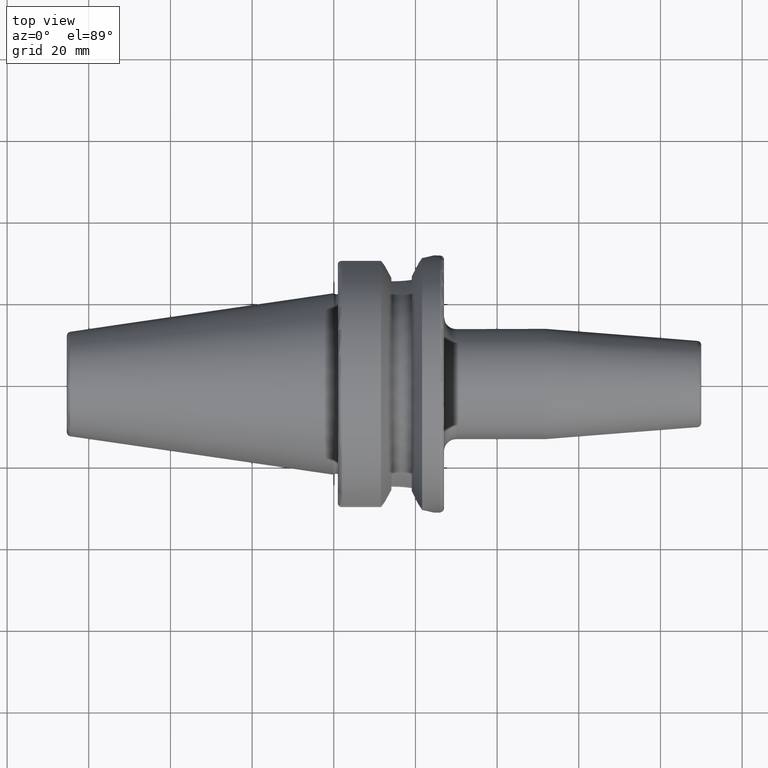
[diagram: clean part render]
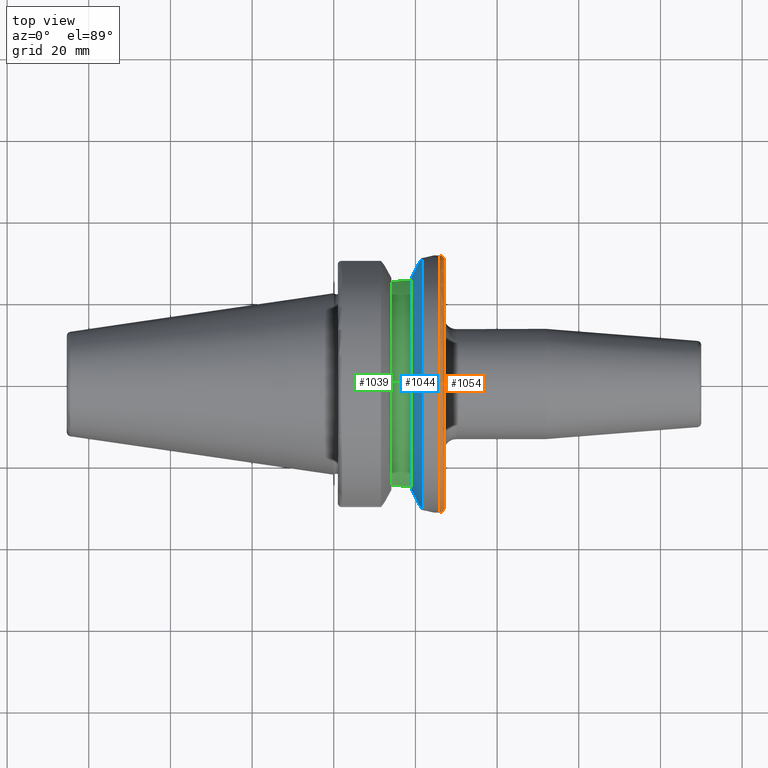
[diagram: same view with three faces highlighted in distinct colors, each labeled with its STEP entity id]
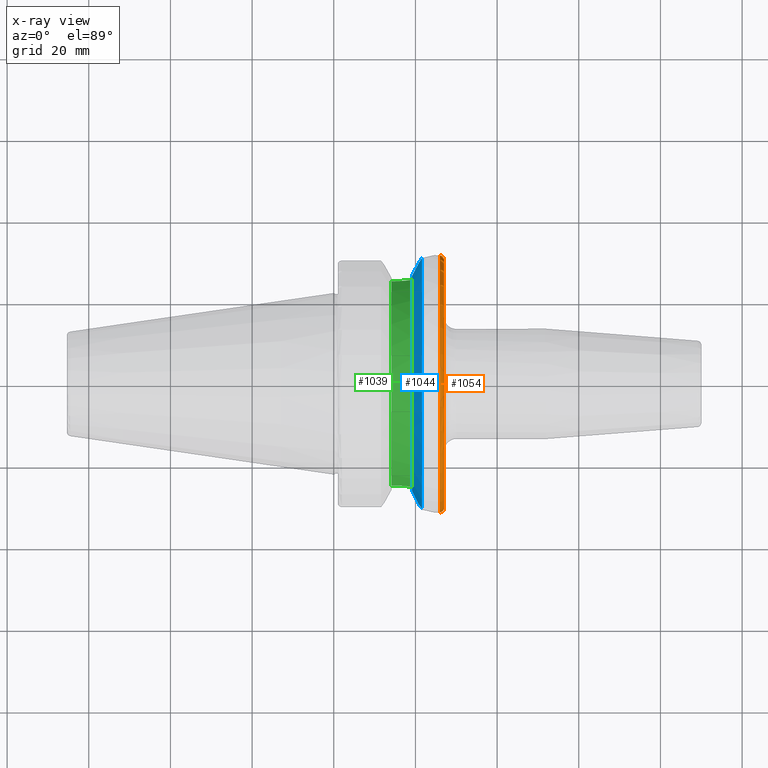
[diagram: x-ray of the same camera — body ghosted, the three highlighted faces saturated]
A machine part, top view with three faces highlighted in distinct colors.
The next image is the same camera in x-ray (body ghosted, the three faces saturated) — at least one of them is partly hidden behind the body in this view.
Their STEP definitions:

[orange] entity #1054 — the highlighted toroidal blend (fillet) surface has major radius 30.5 mm and minor (blend) radius 1 mm.
#278=FACE_OUTER_BOUND('',#344,.T.);
#344=EDGE_LOOP('',(#969,#970,#971,#972,#973));
#364=CIRCLE('',#1104,30.5);
#372=CIRCLE('',#1119,31.5);
#375=CIRCLE('',#1122,31.5);
#412=CIRCLE('',#1199,1.00000000000001);
#427=VERTEX_POINT('',#1554);
#440=VERTEX_POINT('',#1670);
#441=VERTEX_POINT('',#1671);
#535=EDGE_CURVE('',#427,#427,#364,.T.);
#552=EDGE_CURVE('',#440,#441,#372,.T.);
#557=EDGE_CURVE('',#441,#440,#375,.T.);
#668=EDGE_CURVE('',#427,#441,#412,.T.);
#969=ORIENTED_EDGE('',*,*,#535,.F.);
#970=ORIENTED_EDGE('',*,*,#668,.T.);
#971=ORIENTED_EDGE('',*,*,#557,.T.);
#972=ORIENTED_EDGE('',*,*,#552,.T.);
#973=ORIENTED_EDGE('',*,*,#668,.F.);
#997=TOROIDAL_SURFACE('',#1198,30.5,1.00000000000001);
#1054=ADVANCED_FACE('',(#278),#997,.T.);
#1104=AXIS2_PLACEMENT_3D('',#1555,#1256,#1257);
#1119=AXIS2_PLACEMENT_3D('',#1672,#1290,#1291);
#1122=AXIS2_PLACEMENT_3D('',#1687,#1297,#1298);
#1198=AXIS2_PLACEMENT_3D('',#2076,#1496,#1497);
#1199=AXIS2_PLACEMENT_3D('',#2077,#1498,#1499);
#1256=DIRECTION('center_axis',(1.,0.,0.));
#1257=DIRECTION('ref_axis',(0.,0.,-1.));
#1290=DIRECTION('center_axis',(1.,0.,0.));
#1291=DIRECTION('ref_axis',(0.,0.,-1.));
#1297=DIRECTION('center_axis',(1.,0.,0.));
#1298=DIRECTION('ref_axis',(0.,0.,-1.));
#1496=DIRECTION('center_axis',(1.,0.,0.));
#1497=DIRECTION('ref_axis',(0.,0.,-1.));
#1498=DIRECTION('center_axis',(0.,-1.,-1.22464679914735E-16));
#1499=DIRECTION('ref_axis',(0.,-1.22464679914735E-16,1.));
#1554=CARTESIAN_POINT('',(27.,-3.73517273739943E-15,30.5));
#1555=CARTESIAN_POINT('Origin',(27.,0.,0.));
#1670=CARTESIAN_POINT('',(26.,-31.5,-3.85763741731417E-15));
#1671=CARTESIAN_POINT('',(26.,-3.85763741731416E-15,31.5));
#1672=CARTESIAN_POINT('Origin',(26.,0.,0.));
#1687=CARTESIAN_POINT('Origin',(26.,0.,0.));
#2076=CARTESIAN_POINT('Origin',(26.,0.,0.));
#2077=CARTESIAN_POINT('Origin',(26.,-3.73517273739943E-15,30.5));

[blue] entity #1044 — the highlighted conical surface has half-angle 60.125 deg.
#30=B_SPLINE_CURVE_WITH_KNOTS('',3,(#1647,#1648,#1649,#1650,#1651,#1652,
#1653,#1654,#1655,#1656,#1657,#1658,#1659),.UNSPECIFIED.,.F.,.F.,(4,3,3,
3,4),(0.,0.0731680095128381,0.104649820621151,0.171142802077828,0.209508940919985),
 .UNSPECIFIED.);
#40=B_SPLINE_CURVE_WITH_KNOTS('',3,(#1853,#1854,#1855,#1856,#1857,#1858,
#1859,#1860,#1861,#1862,#1863,#1864,#1865),.UNSPECIFIED.,.F.,.F.,(4,3,3,
3,4),(0.,0.0664531587167062,0.104853023510626,0.177983430079729,0.209498394875183),
 .UNSPECIFIED.);
#42=B_SPLINE_CURVE_WITH_KNOTS('',3,(#1939,#1940,#1941,#1942,#1943,#1944),
 .UNSPECIFIED.,.F.,.F.,(4,2,4),(1.4642102789956,1.54570476603971,1.82831600250635),
 .UNSPECIFIED.);
#47=B_SPLINE_CURVE_WITH_KNOTS('',3,(#2032,#2033,#2034,#2035,#2036,#2037),
 .UNSPECIFIED.,.F.,.F.,(4,2,4),(3.3443816511031,3.62699288756974,3.70848737461385),
 .UNSPECIFIED.);
#57=CONICAL_SURFACE('',#1173,29.2970358274569,1.04937921276159);
#268=FACE_OUTER_BOUND('',#333,.T.);
#333=EDGE_LOOP('',(#920,#921,#922,#923,#924,#925));
#374=CIRCLE('',#1121,31.5000000000001);
#397=CIRCLE('',#1174,27.0940716549138);
#438=VERTEX_POINT('',#1639);
#439=VERTEX_POINT('',#1646);
#443=VERTEX_POINT('',#1676);
#469=VERTEX_POINT('',#1852);
#488=VERTEX_POINT('',#1938);
#504=VERTEX_POINT('',#2030);
#550=EDGE_CURVE('',#438,#439,#30,.T.);
#556=EDGE_CURVE('',#443,#438,#374,.T.);
#590=EDGE_CURVE('',#469,#443,#40,.T.);
#616=EDGE_CURVE('',#488,#439,#42,.T.);
#649=EDGE_CURVE('',#469,#504,#47,.T.);
#650=EDGE_CURVE('',#504,#488,#397,.T.);
#920=ORIENTED_EDGE('',*,*,#550,.F.);
#921=ORIENTED_EDGE('',*,*,#556,.F.);
#922=ORIENTED_EDGE('',*,*,#590,.F.);
#923=ORIENTED_EDGE('',*,*,#649,.T.);
#924=ORIENTED_EDGE('',*,*,#650,.T.);
#925=ORIENTED_EDGE('',*,*,#616,.T.);
#1044=ADVANCED_FACE('',(#268),#57,.T.);
#1121=AXIS2_PLACEMENT_3D('',#1686,#1295,#1296);
#1173=AXIS2_PLACEMENT_3D('',#2038,#1443,#1444);
#1174=AXIS2_PLACEMENT_3D('',#2039,#1445,#1446);
#1295=DIRECTION('center_axis',(1.,0.,0.));
#1296=DIRECTION('ref_axis',(0.,0.,-1.));
#1443=DIRECTION('center_axis',(1.,0.,0.));
#1444=DIRECTION('ref_axis',(0.,1.,0.));
#1445=DIRECTION('center_axis',(1.,0.,0.));
#1446=DIRECTION('ref_axis',(0.,0.,-1.));
#1639=CARTESIAN_POINT('',(21.6309636926619,-30.7261128229805,6.93945176433101));
#1646=CARTESIAN_POINT('',(20.7197593187301,-29.382324732277,5.61358863864523));
#1647=CARTESIAN_POINT('Ctrl Pts',(21.6309636926619,-30.7261128229805,6.93945176433103));
#1648=CARTESIAN_POINT('Ctrl Pts',(21.523808608017,-30.5694750524812,6.7862643947483));
#1649=CARTESIAN_POINT('Ctrl Pts',(21.4169091348682,-30.4127664111892,6.63257916592292));
#1650=CARTESIAN_POINT('Ctrl Pts',(21.3104565369096,-30.2562241217975,6.47857776697596));
#1651=CARTESIAN_POINT('Ctrl Pts',(21.26465345161,-30.1888690739029,6.41231598147238));
#1652=CARTESIAN_POINT('Ctrl Pts',(21.218932558532,-30.1215446447261,6.34599600137285));
#1653=CARTESIAN_POINT('Ctrl Pts',(21.1733066768474,-30.0542689338646,6.27963381498106));
#1654=CARTESIAN_POINT('Ctrl Pts',(21.0769398924092,-29.9121753745263,6.13946971787774));
#1655=CARTESIAN_POINT('Ctrl Pts',(20.9807965697266,-29.7700032858713,5.99882548574527));
#1656=CARTESIAN_POINT('Ctrl Pts',(20.8850589555091,-29.627980233877,5.8578732848734));
#1657=CARTESIAN_POINT('Ctrl Pts',(20.8298188005482,-29.5460335981235,5.7765445252015));
#1658=CARTESIAN_POINT('Ctrl Pts',(20.774712916462,-29.4641363179074,5.69511373443497));
#1659=CARTESIAN_POINT('Ctrl Pts',(20.7197698702457,-29.3823300093151,5.61361800937777));
#1676=CARTESIAN_POINT('',(21.6309636926619,30.7261128229805,6.93945176433102));
#1686=CARTESIAN_POINT('Origin',(21.6309636926619,0.,0.));
#1852=CARTESIAN_POINT('',(20.7197593187301,29.382324732277,5.61358863864523));
#1853=CARTESIAN_POINT('Ctrl Pts',(20.7197515894297,29.3823222023351,5.61359762229939));
#1854=CARTESIAN_POINT('Ctrl Pts',(20.8149264355562,29.5240261146166,5.75476612103522));
#1855=CARTESIAN_POINT('Ctrl Pts',(20.9105912690253,29.6660033681397,5.89573769516452));
#1856=CARTESIAN_POINT('Ctrl Pts',(21.0065888437876,29.8080348169787,6.03632495640404));
#1857=CARTESIAN_POINT('Ctrl Pts',(21.0620609080596,29.8901074909828,6.1175631086243));
#1858=CARTESIAN_POINT('Ctrl Pts',(21.1176433000779,29.9721980100116,6.19867342832844));
#1859=CARTESIAN_POINT('Ctrl Pts',(21.1732991947734,30.0542619764308,6.27962385104281));
#1860=CARTESIAN_POINT('Ctrl Pts',(21.2792927504511,30.2105482357996,6.43378942836484));
#1861=CARTESIAN_POINT('Ctrl Pts',(21.3858010607306,30.3670979926265,6.58772453026724));
#1862=CARTESIAN_POINT('Ctrl Pts',(21.4926516371789,30.5236804762099,6.7412363657743));
#1863=CARTESIAN_POINT('Ctrl Pts',(21.5386980399424,30.591158447265,6.8073910655587));
#1864=CARTESIAN_POINT('Ctrl Pts',(21.5848074729305,30.6586423209753,6.87346749569865));
#1865=CARTESIAN_POINT('Ctrl Pts',(21.6309636926619,30.7261128229805,6.93945176433103));
#1938=CARTESIAN_POINT('',(19.1,-26.201311395455,6.89782574439221));
#1939=CARTESIAN_POINT('Ctrl Pts',(19.1,-26.201311395455,6.89782574439221));
#1940=CARTESIAN_POINT('Ctrl Pts',(19.2210929544554,-26.438473693351,6.82497151762395));
#1941=CARTESIAN_POINT('Ctrl Pts',(19.3406963650697,-26.6728819297427,6.74867108656041));
#1942=CARTESIAN_POINT('Ctrl Pts',(19.8677441842159,-27.7064624084632,6.39234949299032));
#1943=CARTESIAN_POINT('Ctrl Pts',(20.3012218741369,-28.558364647748,6.04376984297407));
#1944=CARTESIAN_POINT('Ctrl Pts',(20.7197593187301,-29.382324732277,5.61358863864523));
#2030=CARTESIAN_POINT('',(19.1,26.201311395455,6.89782574439221));
#2032=CARTESIAN_POINT('Ctrl Pts',(20.7197593187301,29.382324732277,5.61358863864523));
#2033=CARTESIAN_POINT('Ctrl Pts',(20.3012218741369,28.558364647748,6.04376984297407));
#2034=CARTESIAN_POINT('Ctrl Pts',(19.867744184216,27.7064624084632,6.39234949299032));
#2035=CARTESIAN_POINT('Ctrl Pts',(19.3406963650697,26.6728819297428,6.74867108656041));
#2036=CARTESIAN_POINT('Ctrl Pts',(19.2210929544554,26.438473693351,6.82497151762395));
#2037=CARTESIAN_POINT('Ctrl Pts',(19.1,26.201311395455,6.89782574439221));
#2038=CARTESIAN_POINT('Origin',(20.3654818463309,0.,0.));
#2039=CARTESIAN_POINT('Origin',(19.1,0.,0.));

[green] entity #1039 — the highlighted cylindrical surface (partial cylindrical patch) has radius 26.3 mm, axis along (1, 0, 0).
#43=B_SPLINE_CURVE_WITH_KNOTS('',3,(#1947,#1948,#1949,#1950,#1951,#1952),
 .UNSPECIFIED.,.F.,.F.,(4,2,4),(0.,0.305409847287967,0.418608358539114),
 .UNSPECIFIED.);
#46=B_SPLINE_CURVE_WITH_KNOTS('',3,(#2013,#2014,#2015,#2016,#2017,#2018),
 .UNSPECIFIED.,.F.,.F.,(4,2,4),(-0.418608358539114,-0.305409847287967,0.),
 .UNSPECIFIED.);
#93=LINE('',#1923,#151);
#107=LINE('',#2019,#165);
#151=VECTOR('',#1371,10.);
#165=VECTOR('',#1427,10.);
#187=CYLINDRICAL_SURFACE('',#1166,26.3);
#263=FACE_OUTER_BOUND('',#328,.T.);
#328=EDGE_LOOP('',(#886,#887,#888,#889,#890,#891));
#393=CIRCLE('',#1163,26.3);
#395=CIRCLE('',#1167,26.3);
#482=VERTEX_POINT('',#1920);
#483=VERTEX_POINT('',#1922);
#489=VERTEX_POINT('',#1945);
#499=VERTEX_POINT('',#1997);
#501=VERTEX_POINT('',#2010);
#502=VERTEX_POINT('',#2012);
#609=EDGE_CURVE('',#483,#482,#93,.T.);
#618=EDGE_CURVE('',#482,#489,#43,.T.);
#636=EDGE_CURVE('',#499,#483,#393,.T.);
#640=EDGE_CURVE('',#501,#489,#395,.T.);
#641=EDGE_CURVE('',#501,#502,#46,.T.);
#642=EDGE_CURVE('',#502,#499,#107,.T.);
#886=ORIENTED_EDGE('',*,*,#609,.T.);
#887=ORIENTED_EDGE('',*,*,#618,.T.);
#888=ORIENTED_EDGE('',*,*,#640,.F.);
#889=ORIENTED_EDGE('',*,*,#641,.T.);
#890=ORIENTED_EDGE('',*,*,#642,.T.);
#891=ORIENTED_EDGE('',*,*,#636,.T.);
#1039=ADVANCED_FACE('',(#263),#187,.T.);
#1163=AXIS2_PLACEMENT_3D('',#1998,#1416,#1417);
#1166=AXIS2_PLACEMENT_3D('',#2009,#1423,#1424);
#1167=AXIS2_PLACEMENT_3D('',#2011,#1425,#1426);
#1371=DIRECTION('',(1.,0.,0.));
#1416=DIRECTION('center_axis',(1.,0.,0.));
#1417=DIRECTION('ref_axis',(0.,0.,-1.));
#1423=DIRECTION('center_axis',(1.,0.,0.));
#1424=DIRECTION('ref_axis',(0.,1.,0.));
#1425=DIRECTION('center_axis',(1.,0.,0.));
#1426=DIRECTION('ref_axis',(0.,0.,-1.));
#1427=DIRECTION('',(-1.,0.,0.));
#1920=CARTESIAN_POINT('',(14.95,-25.0377215417058,8.05));
#1922=CARTESIAN_POINT('',(14.1,-25.0377215417058,8.05));
#1923=CARTESIAN_POINT('',(16.6,-25.0377215417058,8.05));
#1945=CARTESIAN_POINT('',(19.1,-25.3793222919762,6.8978257443922));
#1947=CARTESIAN_POINT('Ctrl Pts',(14.95,-25.0377215417058,8.05));
#1948=CARTESIAN_POINT('Ctrl Pts',(15.9680328242932,-25.0377215417058,8.05));
#1949=CARTESIAN_POINT('Ctrl Pts',(17.0490724969254,-25.1063150193149,7.84520188991776));
#1950=CARTESIAN_POINT('Ctrl Pts',(18.4068260684762,-25.2726009715968,7.28086186600679));
#1951=CARTESIAN_POINT('Ctrl Pts',(18.7623374744972,-25.3241080721198,7.10097664045187));
#1952=CARTESIAN_POINT('Ctrl Pts',(19.1,-25.3793222919762,6.89782574439221));
#1997=CARTESIAN_POINT('',(14.1,25.0377215417058,8.05));
#1998=CARTESIAN_POINT('Origin',(14.1,0.,0.));
#2009=CARTESIAN_POINT('Origin',(16.6,0.,0.));
#2010=CARTESIAN_POINT('',(19.1,25.3793222919762,6.8978257443922));
#2011=CARTESIAN_POINT('Origin',(19.1,0.,0.));
#2012=CARTESIAN_POINT('',(14.95,25.0377215417058,8.05));
#2013=CARTESIAN_POINT('Ctrl Pts',(19.1,25.3793222919762,6.89782574439221));
#2014=CARTESIAN_POINT('Ctrl Pts',(18.7623374744972,25.3241080721198,7.10097664045187));
#2015=CARTESIAN_POINT('Ctrl Pts',(18.4068260684762,25.2726009715968,7.28086186600679));
#2016=CARTESIAN_POINT('Ctrl Pts',(17.0490724969254,25.1063150193149,7.84520188991776));
#2017=CARTESIAN_POINT('Ctrl Pts',(15.9680328242932,25.0377215417058,8.05));
#2018=CARTESIAN_POINT('Ctrl Pts',(14.95,25.0377215417058,8.05));
#2019=CARTESIAN_POINT('',(16.6,25.0377215417058,8.05));